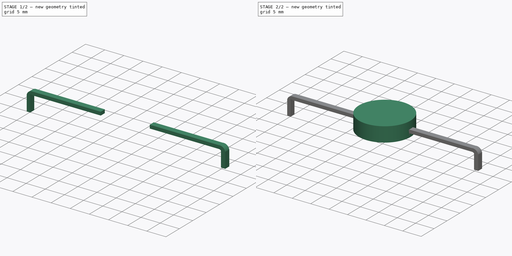
[diagram: build sequence overview — one tinted view per stage of 2, left to right]
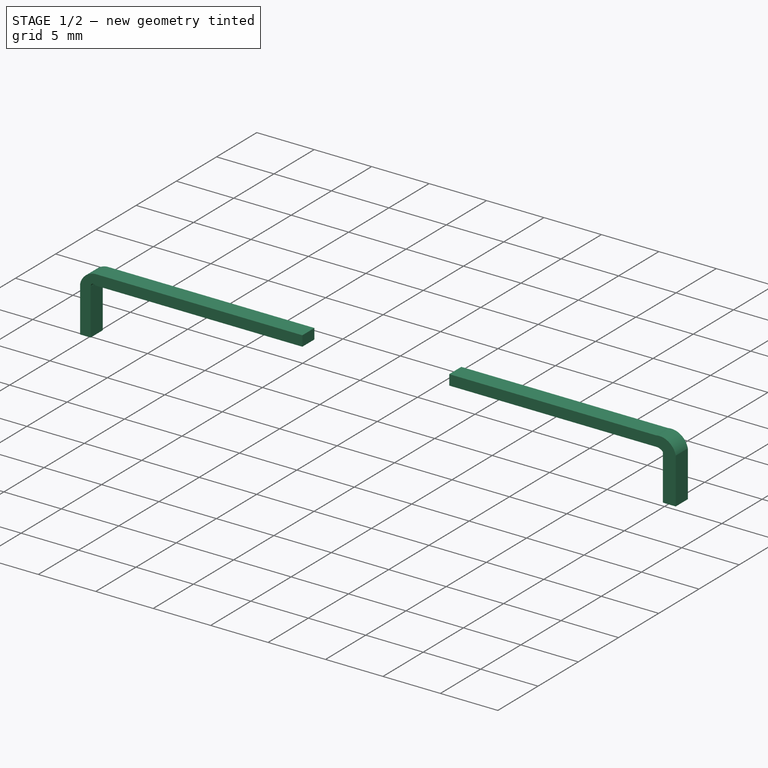
[diagram: stage 1 of 2 — iso view after this stage's code; geometry added in this stage tinted green]
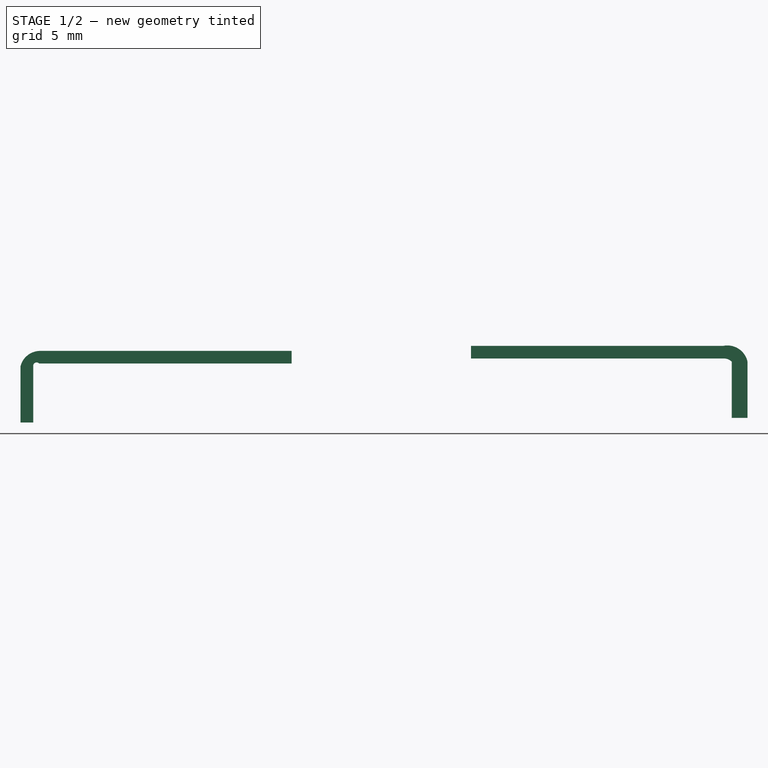
[diagram: stage 1 of 2 — front view after this stage's code; geometry added in this stage tinted green]
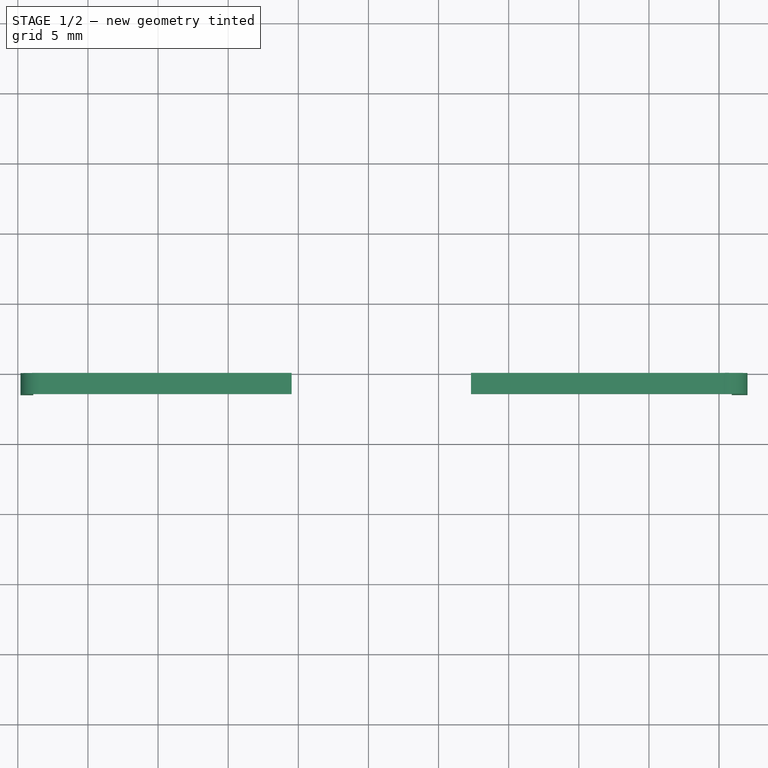
[diagram: stage 1 of 2 — top view after this stage's code; geometry added in this stage tinted green]
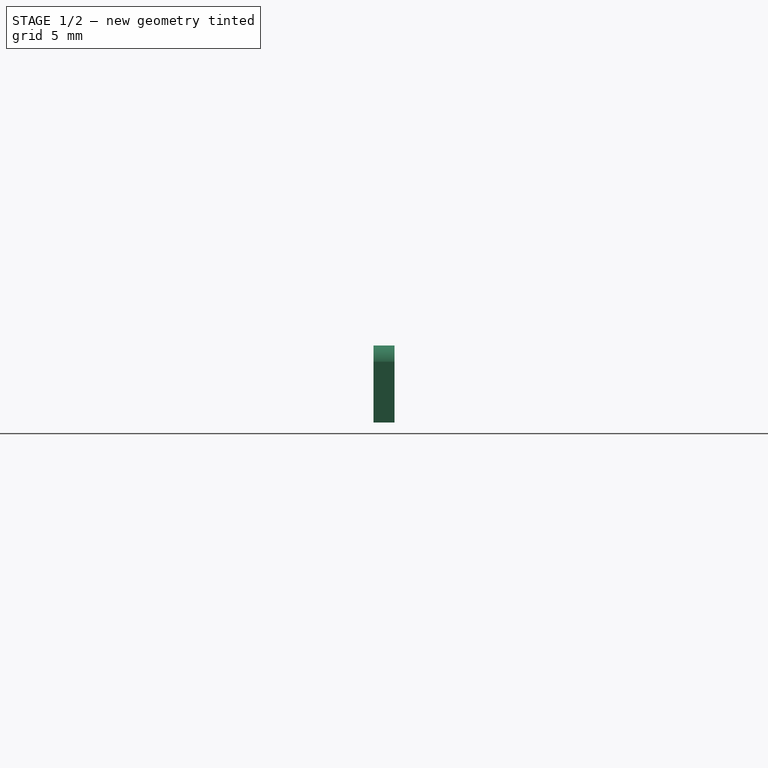
[diagram: stage 1 of 2 — right view after this stage's code; geometry added in this stage tinted green]
FCSTD DOCUMENT  (FreeCAD 1.0R39319 (Git))
Label: diods(КД213)
License: All rights reserved
LicenseURL: https://en.wikipedia.org/wiki/All_rights_reserved
objects: PartDesign::Body×4, Sketcher::SketchObject×2, PartDesign::Pad×2, PartDesign::AdditiveCylinder×2
note: 20 computed .brp shape members not serialized (recipe doc carries the construction recipe); baked Part::Feature solids carry a one-line shape summary decoded from their .brp

FEATURE [Sketcher::SketchObject] Sketch
  ArcFitTolerance = 1e-06
  AttachmentSupport = -> [XZ_Plane002]
  FullyConstrained = false
  MakeInternals = false
  MapMode = 5
  Placement = pos=(0,0,0) rot=(1,0,0;1.5708rad)
  sketch-geometry (9):
    g0: LineSegment StartX=7.31353 StartY=4.21525 StartZ=0 EndX=7.31353 EndY=3.31525 EndZ=0
    g1: LineSegment StartX=7.31353 StartY=3.31525 StartZ=0 EndX=25.3135 EndY=3.31525 EndZ=0
    g2: LineSegment StartX=25.3135 StartY=3.31525 StartZ=0 EndX=25.3135 EndY=4.21525 EndZ=0
    g3: LineSegment StartX=25.3135 StartY=4.21525 StartZ=0 EndX=7.31353 EndY=4.21525 EndZ=0
    g4: ArcOfCircle CenterX=25.5942 CenterY=2.77273 CenterZ=0 NormalX=0 NormalY=0 NormalZ=1 AngleXU=0 Radius=1.46958 StartAngle=0.210326 EndAngle=1.76298
    g5: ArcOfCircle CenterX=25.3314 CenterY=2.4933 CenterZ=0 NormalX=0 NormalY=0 NormalZ=1 AngleXU=0 Radius=0.82215 StartAngle=0.793862 EndAngle=1.59256
    g6: LineSegment StartX=25.9078 StartY=3.07955 StartZ=0 EndX=25.9078 EndY=-0.920453 EndZ=0
    g7: LineSegment StartX=27.0314 StartY=3.07955 StartZ=0 EndX=27.0314 EndY=-0.920453 EndZ=0
    g8: LineSegment StartX=25.9078 StartY=-0.920453 StartZ=0 EndX=27.0314 EndY=-0.920453 EndZ=0
  constraints (21):
    c: Coincident(g0,g1)
    c: Coincident(g1,g2)
    c: Coincident(g2,g3)
    c: Coincident(g3,g0)
    c: Vertical(g0)
    c: Vertical(g2)
    c: Horizontal(g1)
    c: Horizontal(g3)
    c: Distance(g0,g2) = 18
    c: Distance(g1,g3) = 0.9
    c: Coincident(g4,g2)
    c: Coincident(g5,g1)
    c: Distance(g6) = 4
    c: Vertical(g6)
    c: Coincident(g6,g5)
    c: Distance(g7) = 4
    c: Vertical(g7)
    c: Coincident(g7,g4)
    c: Coincident(g8,g6)
    c: Coincident(g8,g7)
    c: Horizontal(g8)
FEATURE [PartDesign::Pad] Pad
  Direction = (0,-1,2e-16)
  Length = 1.5
  Length2 = 10
  Placement = pos=(0,0,0) rot=(1,0,0;1.5708rad)
  Profile = -> Sketch [Edge2,Edge9,Edge1,Edge4,Edge3,Edge7,Edge6,Edge5]
  ReferenceAxis = -> Sketch [N_Axis]
  Refine = true
  Suppressed = false
  Type = 0
FEATURE [PartDesign::Body] Body001  label="Тіло"
  AllowCompound = false
  Group = -> [Cylinder001]
  Origin = -> Origin001
  Tip = -> Cylinder001
FEATURE [PartDesign::Body] Body002  label="Тіло001"
  AllowCompound = false
  Group = -> [Sketch,Pad]
  Origin = -> Origin002
  Tip = -> Pad
FEATURE [Sketcher::SketchObject] Sketch001
  ArcFitTolerance = 1e-06
  AttachmentSupport = -> [XZ_Plane003]
  FullyConstrained = false
  MakeInternals = false
  MapMode = 5
  Placement = pos=(0,0,0) rot=(1,0,0;1.5708rad)
  sketch-geometry (9):
    g0: LineSegment StartX=-5.47323 StartY=3.85259 StartZ=0 EndX=-23.4732 EndY=3.85259 EndZ=0
    g1: LineSegment StartX=-23.4732 StartY=3.85259 StartZ=0 EndX=-23.4732 EndY=2.95259 EndZ=0
    g2: LineSegment StartX=-23.4732 StartY=2.95259 StartZ=0 EndX=-5.47323 EndY=2.95259 EndZ=0
    g3: LineSegment StartX=-5.47323 StartY=2.95259 StartZ=0 EndX=-5.47323 EndY=3.85259 EndZ=0
    g4: ArcOfCircle CenterX=-23.4065 CenterY=2.41036 CenterZ=0 NormalX=0 NormalY=0 NormalZ=1 AngleXU=0 Radius=1.44377 StartAngle=1.61704 EndAngle=2.90806
    g5: ArcOfCircle CenterX=-23.6551 CenterY=2.78362 CenterZ=0 NormalX=0 NormalY=0 NormalZ=1 AngleXU=0 Radius=0.248261 StartAngle=0.748603 EndAngle=3.29993
    g6: LineSegment StartX=-23.9003 StartY=2.74448 StartZ=0 EndX=-23.9003 EndY=-1.25552 EndZ=0
    g7: LineSegment StartX=-24.8111 StartY=2.74448 StartZ=0 EndX=-24.8111 EndY=-1.25552 EndZ=0
    g8: LineSegment StartX=-24.8111 StartY=-1.25552 StartZ=0 EndX=-23.9003 EndY=-1.25552 EndZ=0
  constraints (21):
    c: Coincident(g0,g1)
    c: Coincident(g1,g2)
    c: Coincident(g2,g3)
    c: Coincident(g3,g0)
    c: Horizontal(g0)
    c: Horizontal(g2)
    c: Vertical(g1)
    c: Vertical(g3)
    c: Distance(g1,g3) = 18
    c: Distance(g0,g2) = 0.9
    c: Coincident(g4,g0)
    c: Coincident(g5,g1)
    c: Distance(g6) = 4
    c: Vertical(g6)
    c: Coincident(g6,g5)
    c: Distance(g7) = 4
    c: Vertical(g7)
    c: Coincident(g7,g4)
    c: Coincident(g8,g7)
    c: Coincident(g8,g6)
    c: Horizontal(g8)
FEATURE [PartDesign::Pad] Pad001
  Direction = (0,-1,2e-16)
  Length = 1.5
  Length2 = 10
  Placement = pos=(0,0,0) rot=(1,0,0;1.5708rad)
  Profile = -> Sketch001 [Edge8,Edge3,Edge4,Edge1,Edge7,Edge5,Edge6,Edge9]
  ReferenceAxis = -> Sketch001 [N_Axis]
  Refine = true
  Suppressed = false
  Type = 0
FEATURE [PartDesign::Body] Body003  label="Тіло002"
  AllowCompound = false
  Group = -> [Sketch001,Pad001]
  Origin = -> Origin003
  Tip = -> Pad001
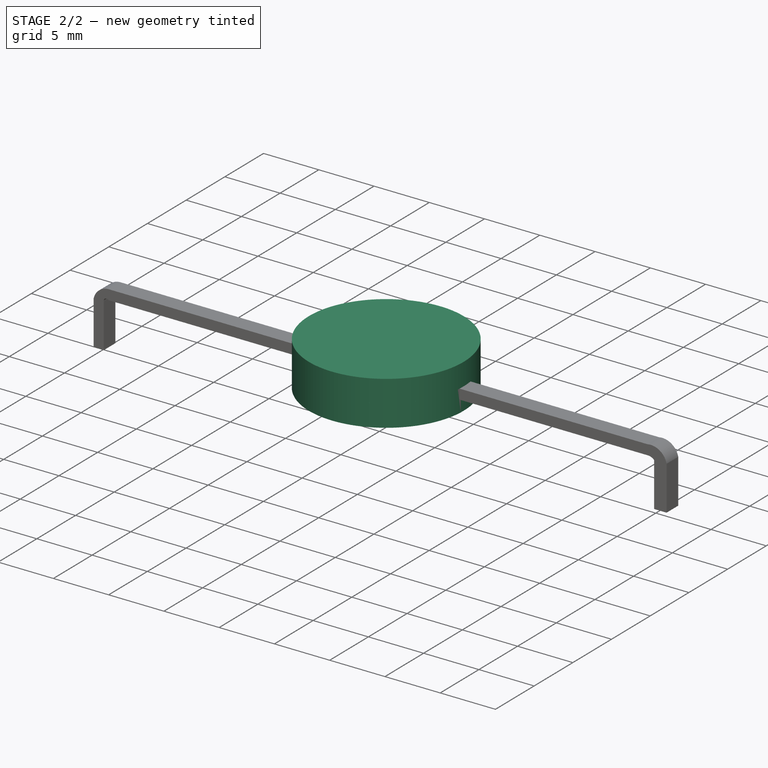
[diagram: stage 2 of 2 — iso view after this stage's code; geometry added in this stage tinted green]
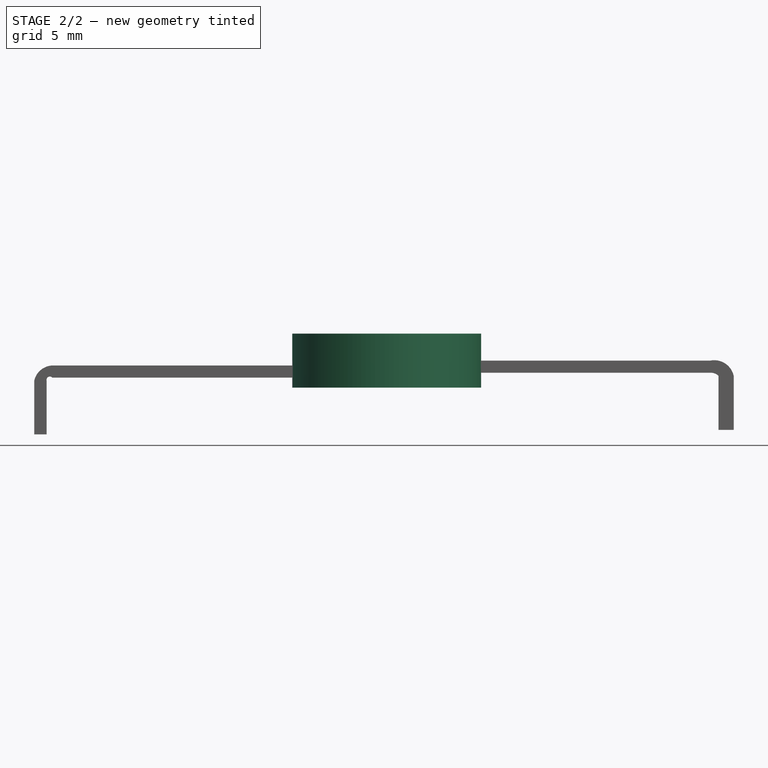
[diagram: stage 2 of 2 — front view after this stage's code; geometry added in this stage tinted green]
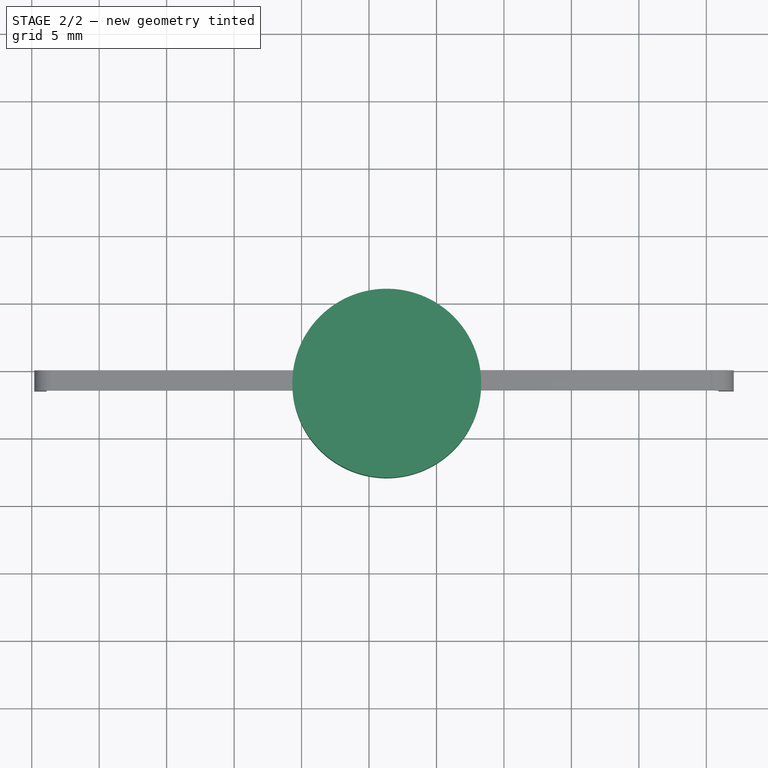
[diagram: stage 2 of 2 — top view after this stage's code; geometry added in this stage tinted green]
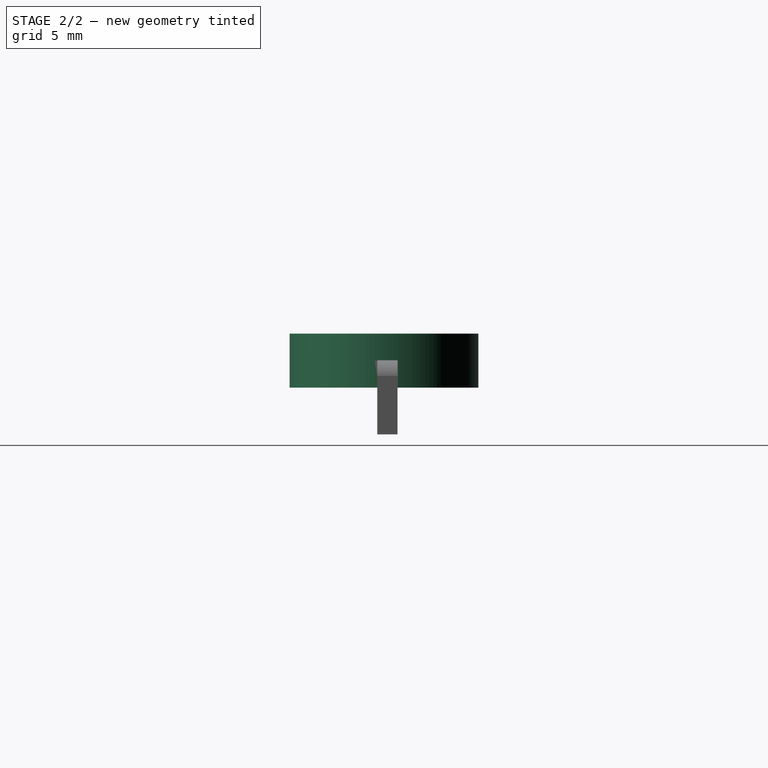
[diagram: stage 2 of 2 — right view after this stage's code; geometry added in this stage tinted green]
FEATURE [PartDesign::AdditiveCylinder] Cylinder
  Angle = 360
  AttacherType = Attacher::AttachEngine3D
  AttachmentOffset = pos=(-6,0.5,-2) rot=(0,0,1;0rad)
  AttachmentSupport = -> [Pad]
  FirstAngle = 0
  Height = 2
  MapMode = 7
  Placement = pos=(1.31353,-1,2.21525) rot=(0,0,1;0rad)
  Radius = 7
  Refine = true
  SecondAngle = 0
  Suppressed = false
FEATURE [PartDesign::Body] Body
  AllowCompound = false
  Group = -> [Cylinder]
  Origin = -> Origin
  Tip = -> Cylinder
FEATURE [PartDesign::AdditiveCylinder] Cylinder001
  Angle = 360
  AttacherType = Attacher::AttachEngine3D
  AttachmentSupport = -> [Cylinder]
  FirstAngle = 0
  Height = 2
  MapMode = 5
  Placement = pos=(1.31353,-1,4.21525) rot=(0,0,1;0rad)
  Radius = 7
  Refine = true
  SecondAngle = 0
  Suppressed = false
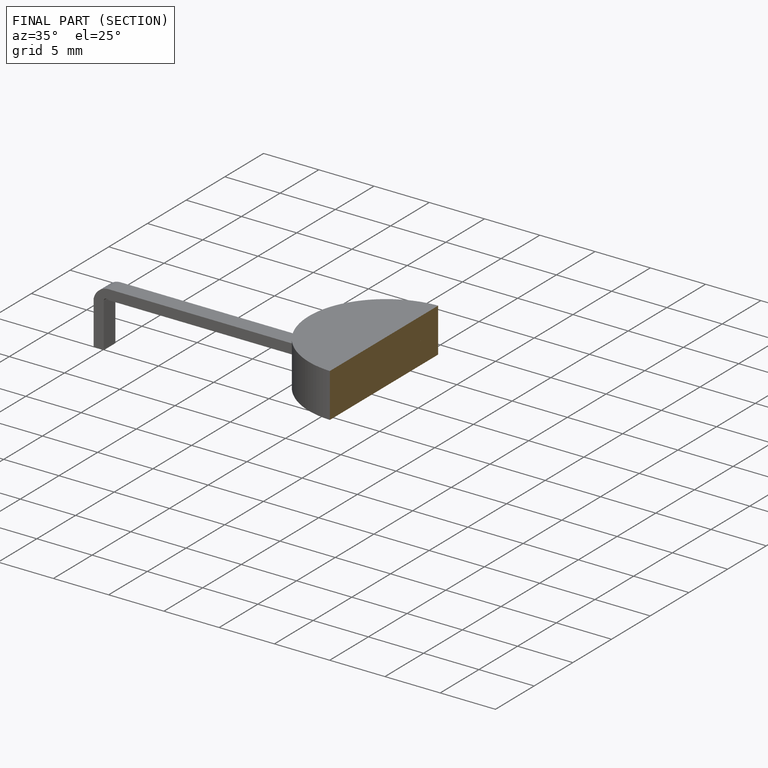
[diagram: finished part — half-section view (interior)]
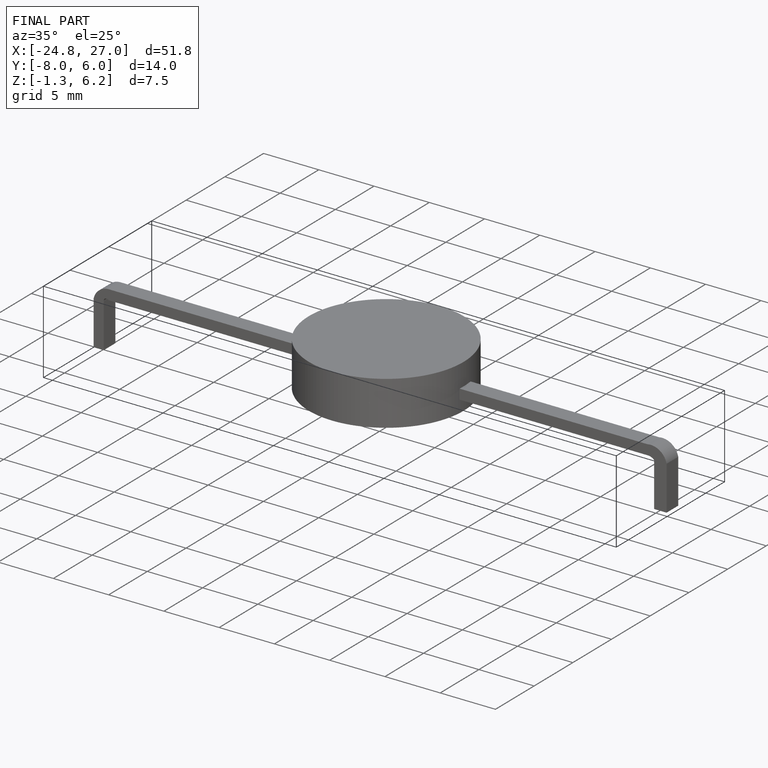
[diagram: finished part — iso view with bounding-box wireframe]
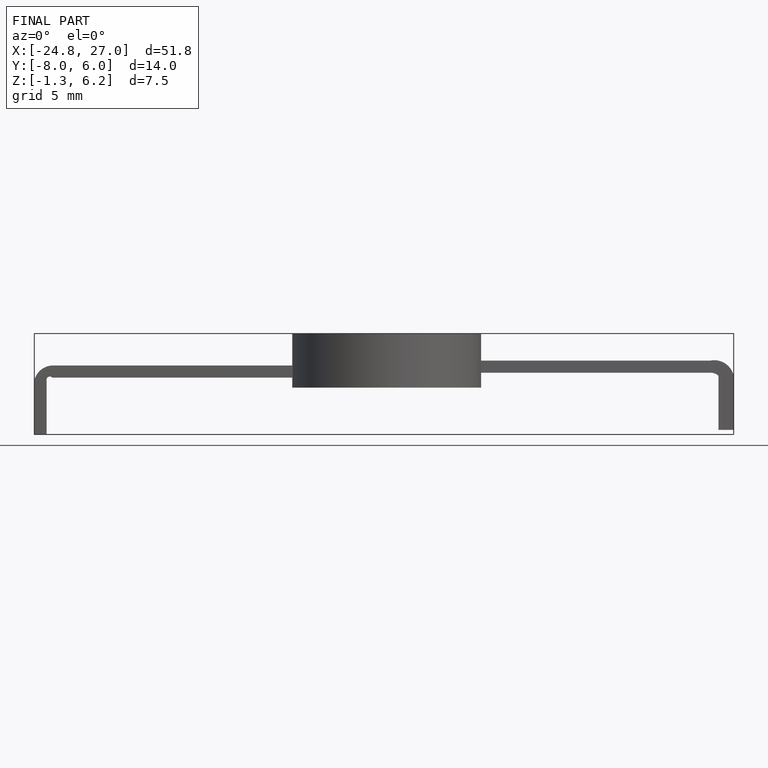
[diagram: finished part — front view with bounding-box wireframe]
